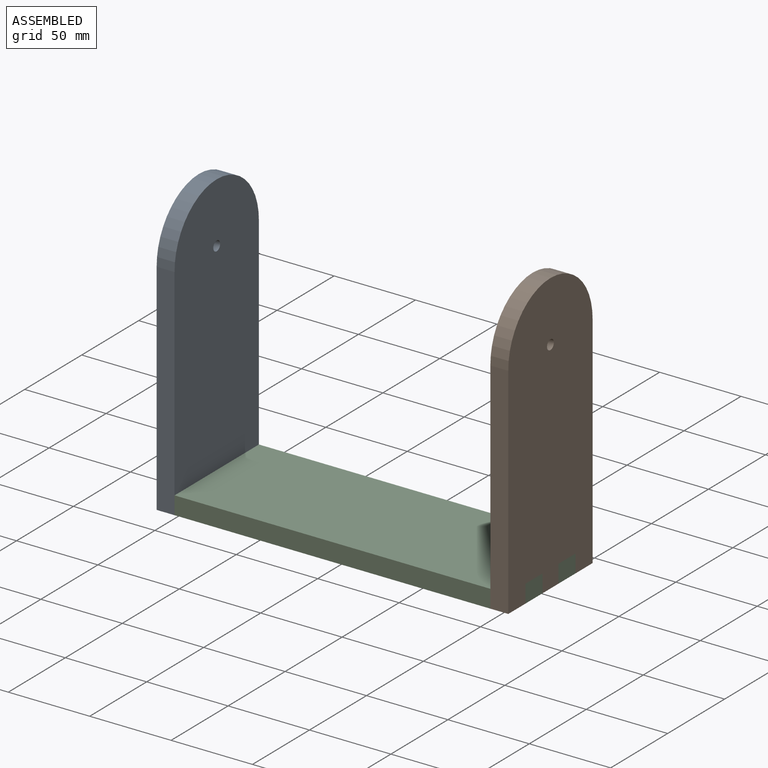
[diagram: assembled view]
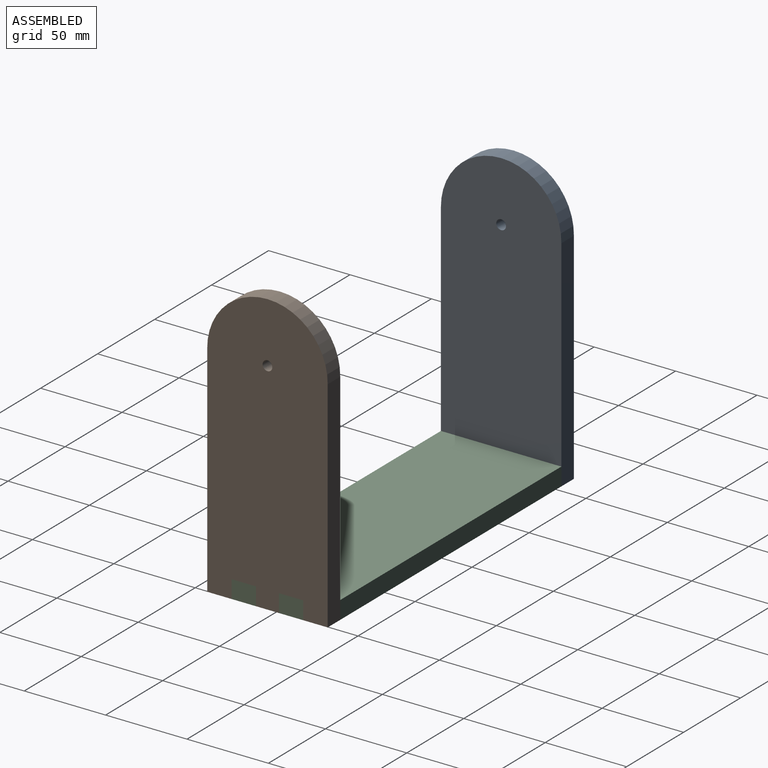
[diagram: assembled view, second angle]
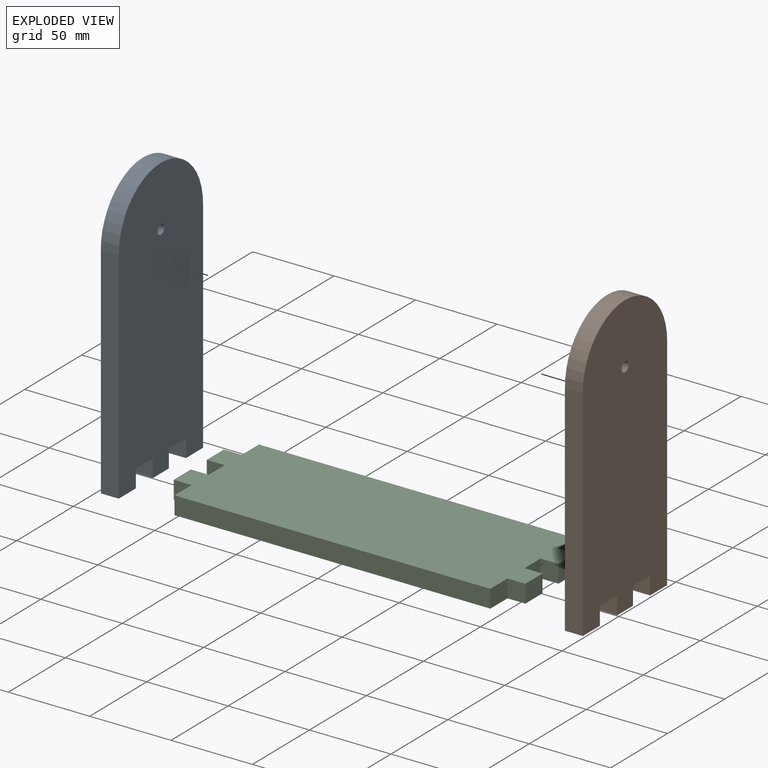
[diagram: exploded view]
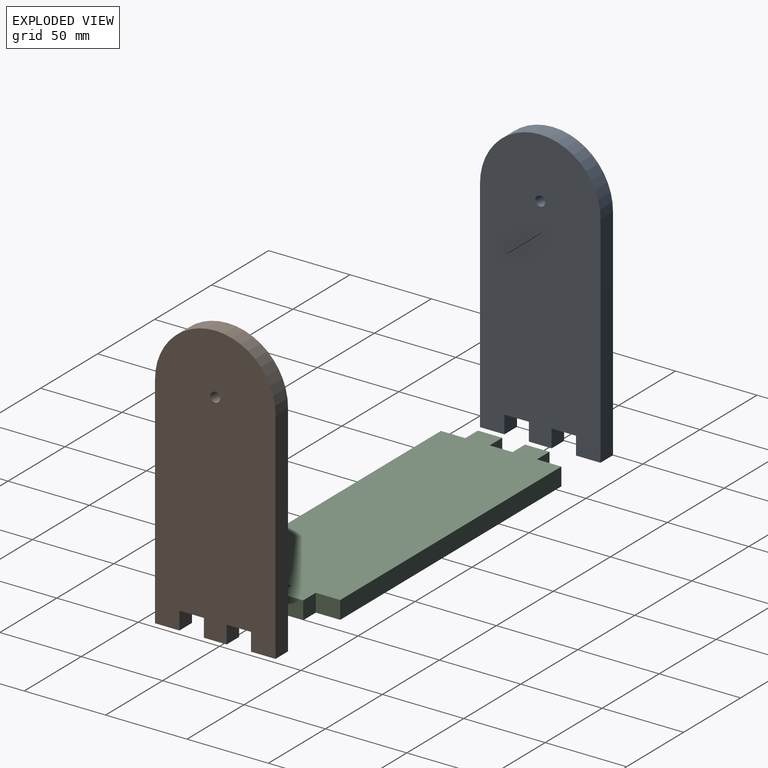
[diagram: exploded view, second angle]
ASSEMBLY  parts=3 mates=2
PART A: 15 faces, bbox 11x74x172.4 mm
  f0: plane 11x11mm, normal (0,-1,0), area 121mm2, adj f1,f12,f13,f14
  f1: plane 14x11mm, normal (0,0,-1), area 154mm2, adj f0,f2,f13,f14
  f2: plane 11x11mm, normal (0,1,0), area 121mm2, adj f1,f3,f13,f14
  f3: plane 15x11mm, normal (0,0,-1), area 165mm2, adj f2,f4,f13,f14
  f4: plane 11x11mm, normal (0,-1,0), area 121mm2, adj f3,f5,f13,f14
  f5: plane 15x11mm, normal (0,0,-1), area 165mm2, adj f4,f6,f13,f14
  f6: plane 135x11mm, normal (0,1,0), area 1485mm2, adj f5,f7,f13,f14
  f7: cylinder r=37mm len=74mm, axis (1,0,0), area 1287.2mm2, adj f6,f8,f13,f14
  f8: plane 135x11mm, normal (0,-1,0), area 1485mm2, adj f7,f9,f13,f14
  f9: plane 15x11mm, normal (0,0,-1), area 165mm2, adj f8,f10,f13,f14
  f10: plane 11x11mm, normal (0,1,0), area 121mm2, adj f9,f12,f13,f14
  f11: cylinder r=3mm len=11mm, axis (1,0,0), area 207.3mm2, adj f13,f14
  f12: plane 15x11mm, normal (0,0,-1), area 165mm2, adj f0,f10,f13,f14
  f13: plane 172.39x74mm, normal (-1,0,0), area 11810.9mm2, adj f0,f1,f2,f3,f4,f5,f6,f7
  f14: plane 172.39x74mm, normal (1,0,0), area 11810.9mm2, adj f0,f1,f2,f3,f4,f5,f6,f7
PART B: same geometry as A
PART C: 22 faces, bbox 216x74x11 mm
  f0: plane 15x11mm, normal (1,0,0), area 165mm2, adj f1,f19,f20,f21
  f1: plane 11x11mm, normal (0,1,0), area 121mm2, adj f0,f2,f20,f21
  f2: plane 15x11mm, normal (1,0,0), area 165mm2, adj f1,f3,f20,f21
  f3: plane 194x11mm, normal (0,1,0), area 2134mm2, adj f2,f4,f20,f21
  f4: plane 15x11mm, normal (-1,0,0), area 165mm2, adj f3,f5,f20,f21
  f5: plane 11x11mm, normal (0,1,0), area 121mm2, adj f4,f6,f20,f21
  f6: plane 15x11mm, normal (-1,0,0), area 165mm2, adj f5,f7,f20,f21
  f7: plane 11x11mm, normal (0,-1,0), area 121mm2, adj f6,f8,f20,f21
  f8: plane 14x11mm, normal (-1,0,0), area 154mm2, adj f7,f9,f20,f21
  f9: plane 11x11mm, normal (0,1,0), area 121mm2, adj f8,f10,f20,f21
  f10: plane 15x11mm, normal (-1,0,0), area 165mm2, adj f9,f11,f20,f21
  f11: plane 11x11mm, normal (0,-1,0), area 121mm2, adj f10,f12,f20,f21
  f12: plane 15x11mm, normal (-1,0,0), area 165mm2, adj f11,f13,f20,f21
  f13: plane 194x11mm, normal (0,-1,0), area 2134mm2, adj f12,f14,f20,f21
  f14: plane 15x11mm, normal (1,0,0), area 165mm2, adj f13,f15,f20,f21
  f15: plane 11x11mm, normal (0,-1,0), area 121mm2, adj f14,f16,f20,f21
  f16: plane 15x11mm, normal (1,0,0), area 165mm2, adj f15,f17,f20,f21
  f17: plane 11x11mm, normal (0,1,0), area 121mm2, adj f16,f18,f20,f21
  f18: plane 14x11mm, normal (1,0,0), area 154mm2, adj f17,f19,f20,f21
  f19: plane 11x11mm, normal (0,-1,0), area 121mm2, adj f0,f18,f20,f21
  f20: plane 216x74mm, normal (0,0,1), area 15016mm2, adj f0,f1,f2,f3,f4,f5,f6,f7
  f21: plane 216x74mm, normal (0,0,-1), area 15016mm2, adj f0,f1,f2,f3,f4,f5,f6,f7
PLACE A t=(-205,0,0)mm
PLACE B at identity
PLACE C at identity fixed
MATE fastened C.f18 <-> B.f13  axis (1,0,0) through (97,7,5.5)mm
MATE fastened C.f8 <-> A.f14  axis (-1,0,0) through (-97,-7,5.5)mm
